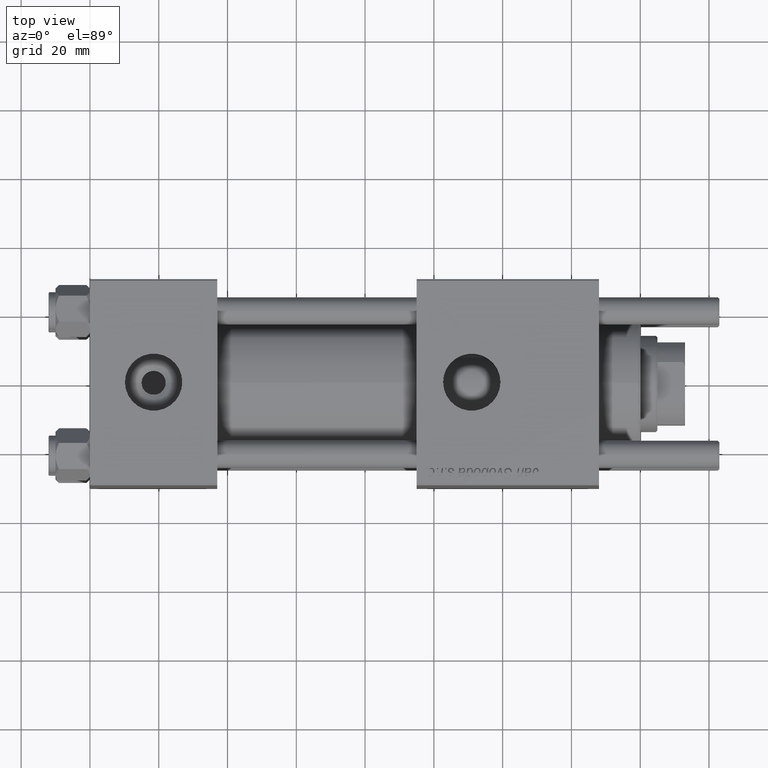
[diagram: clean part render]
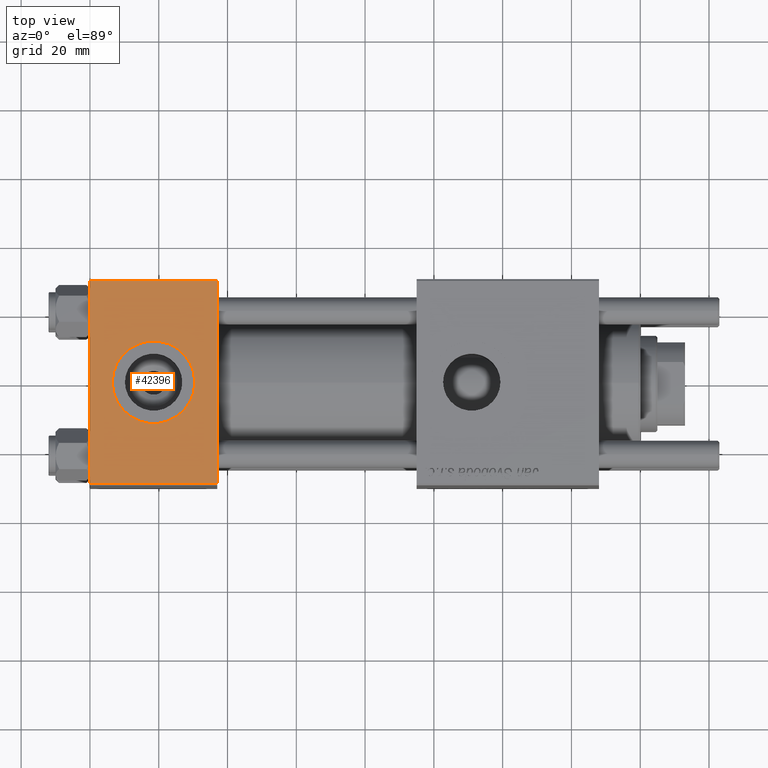
[diagram: same view with one face highlighted and labeled with its STEP entity id]
A machine part, top view. The second image highlights one B-rep face of the part: STEP entity #42396.
In plain terms, the highlighted planar face has unit normal (0, 0, -1).
Its self-contained STEP definition (entity closure, byte-faithful):
#1412 = CARTESIAN_POINT ( 'NONE',  ( 37.00000000000000000, 29.99999999999999289, 30.00000000000000000 ) ) ;
#1955 = DIRECTION ( 'NONE',  ( 0.000000000000000000, 0.000000000000000000, 1.000000000000000000 ) ) ;
#2435 = LINE ( 'NONE', #28069, #5757 ) ;
#2653 = VECTOR ( 'NONE', #5743, 1000.000000000000000 ) ;
#2722 = CIRCLE ( 'NONE', #34896, 12.00000000000000000 ) ;
#4973 = CARTESIAN_POINT ( 'NONE',  ( 0.000000000000000000, 29.49999999999999289, 30.00000000000000000 ) ) ;
#5743 = DIRECTION ( 'NONE',  ( 1.000000000000000000, 0.000000000000000000, 0.000000000000000000 ) ) ;
#5757 = VECTOR ( 'NONE', #45092, 1000.000000000000000 ) ;
#5761 = CARTESIAN_POINT ( 'NONE',  ( 37.00000000000000000, -29.49999999999998579, 29.99999999999999289 ) ) ;
#6214 = EDGE_CURVE ( 'NONE', #39125, #10193, #18970, .T. ) ;
#6550 = DIRECTION ( 'NONE',  ( 1.000000000000000000, 0.000000000000000000, 0.000000000000000000 ) ) ;
#7745 = DIRECTION ( 'NONE',  ( 0.000000000000000000, 0.000000000000000000, 1.000000000000000000 ) ) ;
#8339 = AXIS2_PLACEMENT_3D ( 'NONE', #30333, #47920, #49332 ) ;
#9450 = EDGE_CURVE ( 'NONE', #39125, #38635, #51321, .T. ) ;
#10193 = VERTEX_POINT ( 'NONE', #5761 ) ;
#12803 = EDGE_LOOP ( 'NONE', ( #22651, #46190 ) ) ;
#13820 = CARTESIAN_POINT ( 'NONE',  ( 37.00000000000000000, -29.50000000000000000, 29.99999999999999289 ) ) ;
#14292 = EDGE_CURVE ( 'NONE', #14908, #10193, #18136, .T. ) ;
#14908 = VERTEX_POINT ( 'NONE', #52474 ) ;
#17085 = FACE_OUTER_BOUND ( 'NONE', #47281, .T. ) ;
#18136 = LINE ( 'NONE', #13820, #2653 ) ;
#18970 = LINE ( 'NONE', #1412, #35661 ) ;
#22651 = ORIENTED_EDGE ( 'NONE', *, *, #37508, .F. ) ;
#23821 = CARTESIAN_POINT ( 'NONE',  ( 18.50000000000000000, -3.469446951953614978E-15, 29.99999999999999645 ) ) ;
#24498 = CARTESIAN_POINT ( 'NONE',  ( 6.499999999999997335, -1.999870792976790833E-15, 29.99999999999999645 ) ) ;
#28069 = CARTESIAN_POINT ( 'NONE',  ( 0.000000000000000000, 29.99999999999999289, 30.00000000000000000 ) ) ;
#28438 = AXIS2_PLACEMENT_3D ( 'NONE', #46643, #7745, #46362 ) ;
#29064 = CARTESIAN_POINT ( 'NONE',  ( 37.00000000000000000, 29.49999999999999289, 30.00000000000000000 ) ) ;
#30333 = CARTESIAN_POINT ( 'NONE',  ( 37.00000000000000000, 29.99999999999999289, 30.00000000000000000 ) ) ;
#30569 = EDGE_CURVE ( 'NONE', #38635, #14908, #2435, .T. ) ;
#34896 = AXIS2_PLACEMENT_3D ( 'NONE', #23821, #1955, #6550 ) ;
#35661 = VECTOR ( 'NONE', #54717, 1000.000000000000000 ) ;
#37063 = ORIENTED_EDGE ( 'NONE', *, *, #6214, .F. ) ;
#37508 = EDGE_CURVE ( 'NONE', #40676, #49137, #38582, .T. ) ;
#38582 = CIRCLE ( 'NONE', #28438, 12.00000000000000000 ) ;
#38635 = VERTEX_POINT ( 'NONE', #4973 ) ;
#39125 = VERTEX_POINT ( 'NONE', #29064 ) ;
#40051 = EDGE_CURVE ( 'NONE', #49137, #40676, #2722, .T. ) ;
#40676 = VERTEX_POINT ( 'NONE', #42593 ) ;
#41091 = ORIENTED_EDGE ( 'NONE', *, *, #30569, .T. ) ;
#42396 = ADVANCED_FACE ( 'NONE', ( #56589, #17085 ), #52243, .F. ) ;
#42593 = CARTESIAN_POINT ( 'NONE',  ( 30.50000000000000000, -3.469446951953614978E-15, 29.99999999999999645 ) ) ;
#45092 = DIRECTION ( 'NONE',  ( 0.000000000000000000, -1.000000000000000000, -1.156482317317871725E-16 ) ) ;
#46190 = ORIENTED_EDGE ( 'NONE', *, *, #40051, .F. ) ;
#46362 = DIRECTION ( 'NONE',  ( 1.000000000000000000, 0.000000000000000000, 0.000000000000000000 ) ) ;
#46643 = CARTESIAN_POINT ( 'NONE',  ( 18.50000000000000000, -3.469446951953614978E-15, 29.99999999999999645 ) ) ;
#46944 = ORIENTED_EDGE ( 'NONE', *, *, #14292, .T. ) ;
#47005 = CARTESIAN_POINT ( 'NONE',  ( 0.000000000000000000, 29.49999999999999289, 30.00000000000000000 ) ) ;
#47281 = EDGE_LOOP ( 'NONE', ( #41091, #46944, #37063, #54655 ) ) ;
#47920 = DIRECTION ( 'NONE',  ( 0.000000000000000000, 1.156482317317871725E-16, -1.000000000000000000 ) ) ;
#49137 = VERTEX_POINT ( 'NONE', #24498 ) ;
#49241 = DIRECTION ( 'NONE',  ( -1.000000000000000000, 0.000000000000000000, 0.000000000000000000 ) ) ;
#49332 = DIRECTION ( 'NONE',  ( 0.000000000000000000, 1.000000000000000000, 1.156482317317871725E-16 ) ) ;
#51310 = VECTOR ( 'NONE', #49241, 1000.000000000000000 ) ;
#51321 = LINE ( 'NONE', #47005, #51310 ) ;
#52243 = PLANE ( 'NONE',  #8339 ) ;
#52474 = CARTESIAN_POINT ( 'NONE',  ( 0.000000000000000000, -29.49999999999998579, 29.99999999999999289 ) ) ;
#54655 = ORIENTED_EDGE ( 'NONE', *, *, #9450, .T. ) ;
#54717 = DIRECTION ( 'NONE',  ( 0.000000000000000000, -1.000000000000000000, -1.156482317317871725E-16 ) ) ;
#56589 = FACE_BOUND ( 'NONE', #12803, .T. ) ;